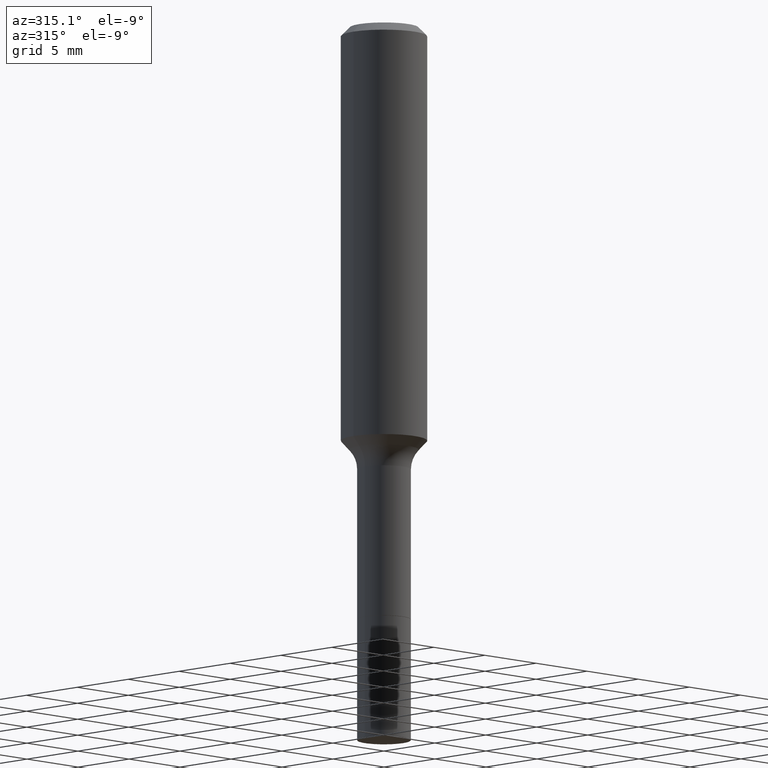
[diagram: clean part render]
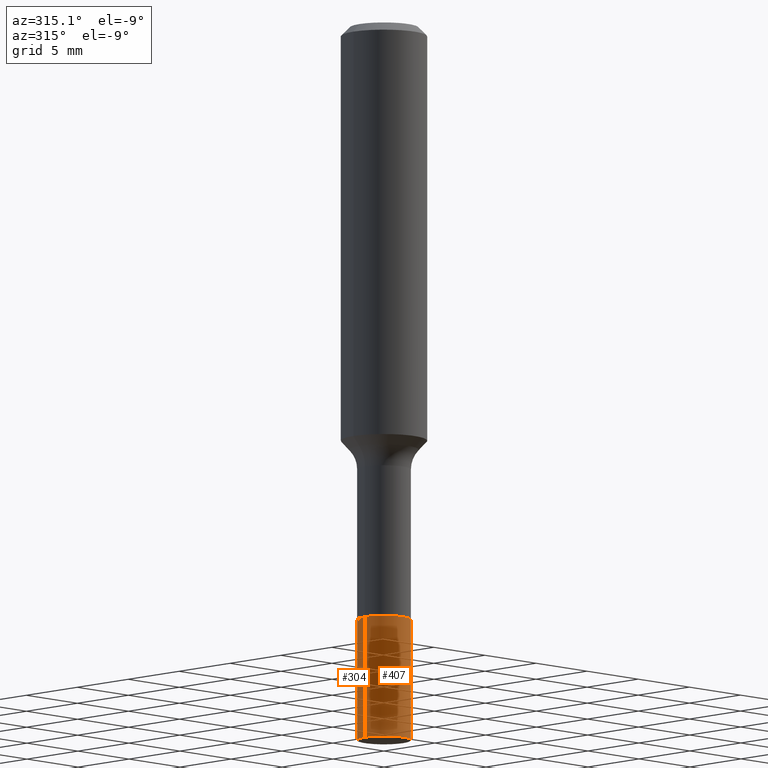
[diagram: same view with one multi-face feature highlighted, each face labeled with its STEP entity id]
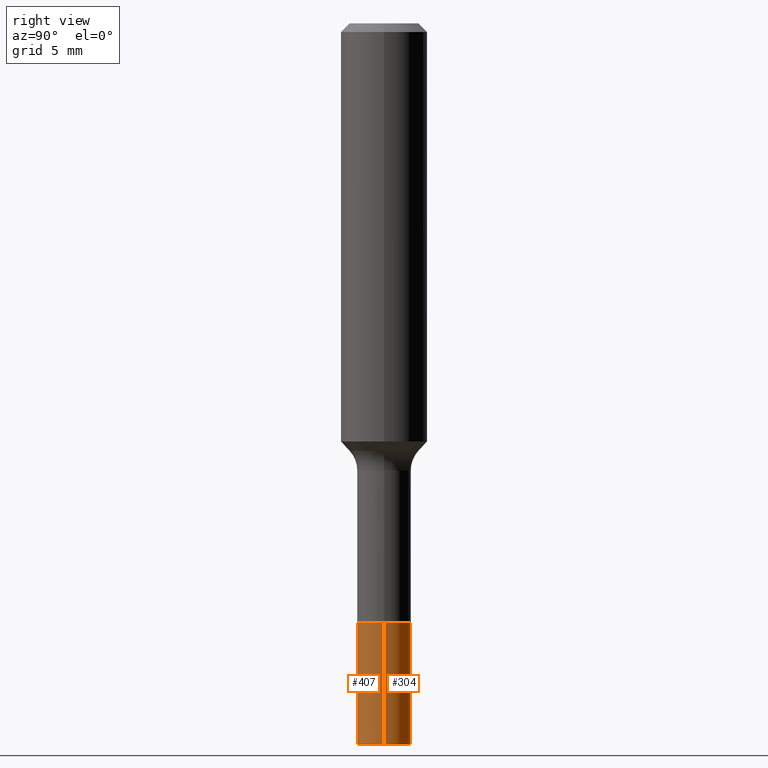
[diagram: same view with one multi-face feature highlighted, each face labeled with its STEP entity id]
A machine part, auxiliary view. The highlighted faces form ONE feature: a constant-radius fillet chain: 2 tangent blend faces with common blend radius 1.8669 mm. The faces share edges in the B-rep.
A second angle (right view) of the same feature is appended — it is thin or edge-on in the first view.
Their STEP definitions:
[1] entity #304 (Cylinder):
#1 = DIRECTION ( 'NONE',  ( -2.445468806185136877E-29, 3.491481338843145188E-15, 1.000000000000000000 ) ) ;
#37 = CARTESIAN_POINT ( 'NONE',  ( 0.07350000000000012079, -7.386228772322672689E-15, -1.968500000000000139 ) ) ;
#51 = DIRECTION ( 'NONE',  ( -2.445468806185136597E-29, 3.491481338843145583E-15, 1.000000000000000000 ) ) ;
#58 = EDGE_CURVE ( 'NONE', #71, #342, #79, .T. ) ;
#67 = CARTESIAN_POINT ( 'NONE',  ( -0.07349999999999999589, -5.769400461811675225E-15, -1.635500000000000176 ) ) ;
#71 = VERTEX_POINT ( 'NONE', #37 ) ;
#79 = LINE ( 'NONE', #400, #371 ) ;
#83 = CARTESIAN_POINT ( 'NONE',  ( 3.999564232515791317E-29, -5.710317729677964577E-15, -1.635500000000000176 ) ) ;
#85 = CYLINDRICAL_SURFACE ( 'NONE', #322, 0.07350000000000005140 ) ;
#100 = CARTESIAN_POINT ( 'NONE',  ( -0.07350000000000005140, -5.188068818894290870E-15, -1.635500000000000176 ) ) ;
#102 = ORIENTED_EDGE ( 'NONE', *, *, #58, .F. ) ;
#136 = CARTESIAN_POINT ( 'NONE',  ( 0.07349999999999999589, -6.223565486487904770E-15, -1.635500000000000176 ) ) ;
#189 = ORIENTED_EDGE ( 'NONE', *, *, #289, .T. ) ;
#203 = CIRCLE ( 'NONE', #237, 0.07349999999999999589 ) ;
#215 = DIRECTION ( 'NONE',  ( -2.445468806185136597E-29, 3.491481338843145583E-15, 1.000000000000000000 ) ) ;
#234 = VERTEX_POINT ( 'NONE', #252 ) ;
#237 = AXIS2_PLACEMENT_3D ( 'NONE', #490, #51, #372 ) ;
#251 = DIRECTION ( 'NONE',  ( 1.000000000000000000, -6.982962677686268288E-15, 0.000000000000000000 ) ) ;
#252 = CARTESIAN_POINT ( 'NONE',  ( -0.07350000000000012079, -5.769400461811673647E-15, -1.968500000000000139 ) ) ;
#254 = AXIS2_PLACEMENT_3D ( 'NONE', #297, #257, #299 ) ;
#257 = DIRECTION ( 'NONE',  ( -2.445468806185136597E-29, 3.491481338843145583E-15, 1.000000000000000000 ) ) ;
#272 = ORIENTED_EDGE ( 'NONE', *, *, #298, .F. ) ;
#273 = ORIENTED_EDGE ( 'NONE', *, *, #467, .T. ) ;
#289 = EDGE_CURVE ( 'NONE', #71, #234, #363, .T. ) ;
#297 = CARTESIAN_POINT ( 'NONE',  ( 4.813905344975441835E-29, -6.872981015512731707E-15, -1.968500000000000139 ) ) ;
#298 = EDGE_CURVE ( 'NONE', #342, #419, #203, .T. ) ;
#299 = DIRECTION ( 'NONE',  ( 1.000000000000000000, -6.982962677686261977E-15, 0.000000000000000000 ) ) ;
#304 = ADVANCED_FACE ( 'NONE', ( #454 ), #85, .T. ) ;
#322 = AXIS2_PLACEMENT_3D ( 'NONE', #83, #215, #251 ) ;
#339 = LINE ( 'NONE', #100, #416 ) ;
#342 = VERTEX_POINT ( 'NONE', #136 ) ;
#363 = CIRCLE ( 'NONE', #254, 0.07350000000000012079 ) ;
#371 = VECTOR ( 'NONE', #1, 39.37007874015748143 ) ;
#372 = DIRECTION ( 'NONE',  ( 1.000000000000000000, -6.982962677686260400E-15, 0.000000000000000000 ) ) ;
#379 = EDGE_LOOP ( 'NONE', ( #189, #273, #272, #102 ) ) ;
#400 = CARTESIAN_POINT ( 'NONE',  ( 0.07350000000000005140, -6.223565486487906347E-15, -1.635500000000000176 ) ) ;
#416 = VECTOR ( 'NONE', #497, 39.37007874015748143 ) ;
#419 = VERTEX_POINT ( 'NONE', #67 ) ;
#454 = FACE_OUTER_BOUND ( 'NONE', #379, .T. ) ;
#467 = EDGE_CURVE ( 'NONE', #234, #419, #339, .T. ) ;
#490 = CARTESIAN_POINT ( 'NONE',  ( 3.999564232515791317E-29, -5.710317729677964577E-15, -1.635500000000000176 ) ) ;
#497 = DIRECTION ( 'NONE',  ( -2.445468806185136877E-29, 3.491481338843145188E-15, 1.000000000000000000 ) ) ;
[2] entity #407 (Cylinder):
#1 = DIRECTION ( 'NONE',  ( -2.445468806185136877E-29, 3.491481338843145188E-15, 1.000000000000000000 ) ) ;
#5 = EDGE_CURVE ( 'NONE', #234, #71, #333, .T. ) ;
#6 = AXIS2_PLACEMENT_3D ( 'NONE', #7, #370, #212 ) ;
#7 = CARTESIAN_POINT ( 'NONE',  ( 3.999564232515791317E-29, -5.710317729677964577E-15, -1.635500000000000176 ) ) ;
#21 = EDGE_LOOP ( 'NONE', ( #259, #106, #186, #453 ) ) ;
#22 = CARTESIAN_POINT ( 'NONE',  ( 3.999564232515791317E-29, -5.710317729677964577E-15, -1.635500000000000176 ) ) ;
#37 = CARTESIAN_POINT ( 'NONE',  ( 0.07350000000000012079, -7.386228772322672689E-15, -1.968500000000000139 ) ) ;
#58 = EDGE_CURVE ( 'NONE', #71, #342, #79, .T. ) ;
#67 = CARTESIAN_POINT ( 'NONE',  ( -0.07349999999999999589, -5.769400461811675225E-15, -1.635500000000000176 ) ) ;
#71 = VERTEX_POINT ( 'NONE', #37 ) ;
#79 = LINE ( 'NONE', #400, #371 ) ;
#100 = CARTESIAN_POINT ( 'NONE',  ( -0.07350000000000005140, -5.188068818894290870E-15, -1.635500000000000176 ) ) ;
#106 = ORIENTED_EDGE ( 'NONE', *, *, #5, .T. ) ;
#136 = CARTESIAN_POINT ( 'NONE',  ( 0.07349999999999999589, -6.223565486487904770E-15, -1.635500000000000176 ) ) ;
#149 = DIRECTION ( 'NONE',  ( 1.000000000000000000, -6.982962677686268288E-15, 0.000000000000000000 ) ) ;
#186 = ORIENTED_EDGE ( 'NONE', *, *, #58, .T. ) ;
#212 = DIRECTION ( 'NONE',  ( 1.000000000000000000, -6.982962677686260400E-15, 0.000000000000000000 ) ) ;
#228 = CIRCLE ( 'NONE', #6, 0.07349999999999999589 ) ;
#234 = VERTEX_POINT ( 'NONE', #252 ) ;
#252 = CARTESIAN_POINT ( 'NONE',  ( -0.07350000000000012079, -5.769400461811673647E-15, -1.968500000000000139 ) ) ;
#259 = ORIENTED_EDGE ( 'NONE', *, *, #467, .F. ) ;
#268 = DIRECTION ( 'NONE',  ( 1.000000000000000000, -6.982962677686261977E-15, 0.000000000000000000 ) ) ;
#275 = DIRECTION ( 'NONE',  ( -2.445468806185136597E-29, 3.491481338843145583E-15, 1.000000000000000000 ) ) ;
#309 = CYLINDRICAL_SURFACE ( 'NONE', #427, 0.07350000000000005140 ) ;
#333 = CIRCLE ( 'NONE', #489, 0.07350000000000012079 ) ;
#339 = LINE ( 'NONE', #100, #416 ) ;
#342 = VERTEX_POINT ( 'NONE', #136 ) ;
#369 = EDGE_CURVE ( 'NONE', #419, #342, #228, .T. ) ;
#370 = DIRECTION ( 'NONE',  ( -2.445468806185136597E-29, 3.491481338843145583E-15, 1.000000000000000000 ) ) ;
#371 = VECTOR ( 'NONE', #1, 39.37007874015748143 ) ;
#378 = FACE_OUTER_BOUND ( 'NONE', #21, .T. ) ;
#384 = CARTESIAN_POINT ( 'NONE',  ( 4.813905344975441835E-29, -6.872981015512731707E-15, -1.968500000000000139 ) ) ;
#400 = CARTESIAN_POINT ( 'NONE',  ( 0.07350000000000005140, -6.223565486487906347E-15, -1.635500000000000176 ) ) ;
#407 = ADVANCED_FACE ( 'NONE', ( #378 ), #309, .T. ) ;
#416 = VECTOR ( 'NONE', #497, 39.37007874015748143 ) ;
#419 = VERTEX_POINT ( 'NONE', #67 ) ;
#427 = AXIS2_PLACEMENT_3D ( 'NONE', #22, #275, #149 ) ;
#453 = ORIENTED_EDGE ( 'NONE', *, *, #369, .F. ) ;
#467 = EDGE_CURVE ( 'NONE', #234, #419, #339, .T. ) ;
#489 = AXIS2_PLACEMENT_3D ( 'NONE', #384, #503, #268 ) ;
#497 = DIRECTION ( 'NONE',  ( -2.445468806185136877E-29, 3.491481338843145188E-15, 1.000000000000000000 ) ) ;
#503 = DIRECTION ( 'NONE',  ( -2.445468806185136597E-29, 3.491481338843145583E-15, 1.000000000000000000 ) ) ;